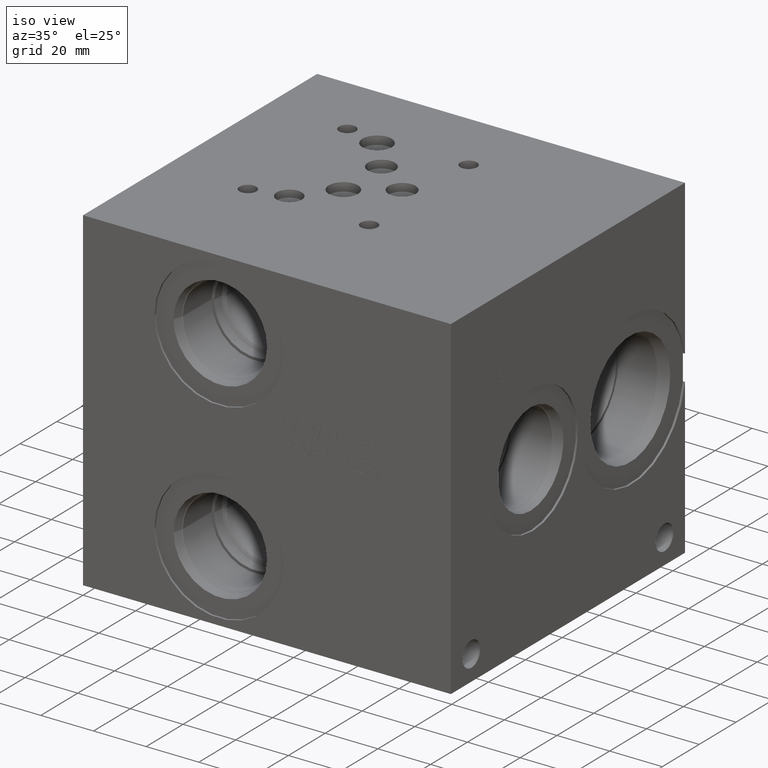
[diagram: clean part render]
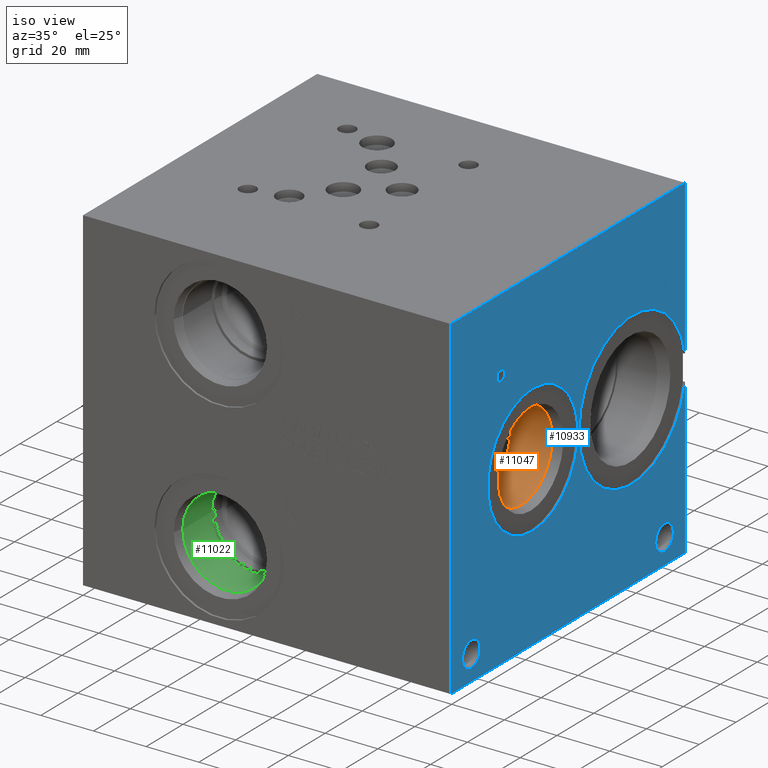
[diagram: same view with three faces highlighted in distinct colors, each labeled with its STEP entity id]
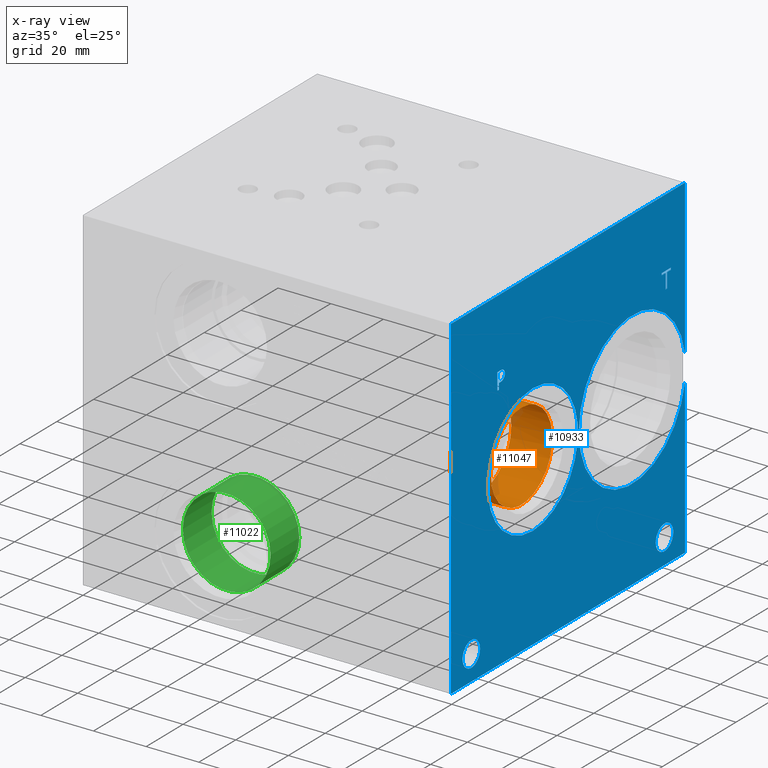
[diagram: x-ray of the same camera — body ghosted, the three highlighted faces saturated]
A machine part, iso view with three faces highlighted in distinct colors.
The next image is the same camera in x-ray (body ghosted, the three faces saturated) — at least one of them is partly hidden behind the body in this view.
Their STEP definitions:

[orange] entity #11047 — the highlighted cylindrical surface (bore or boss wall) has radius 16.67 mm, axis along (1, 0, 0).
#102=CYLINDRICAL_SURFACE('',#11655,16.67);
#286=CIRCLE('',#11652,16.67);
#287=CIRCLE('',#11653,16.67);
#289=CIRCLE('',#11656,16.67);
#290=CIRCLE('',#11657,16.67);
#1387=FACE_OUTER_BOUND('',#2020,.T.);
#2020=EDGE_LOOP('',(#9564,#9565,#9566,#9567,#9568,#9569));
#3064=LINE('',#18954,#4088);
#4088=VECTOR('',#13849,16.67);
#5116=VERTEX_POINT('',#18944);
#5117=VERTEX_POINT('',#18945);
#5119=VERTEX_POINT('',#18951);
#5120=VERTEX_POINT('',#18952);
#6624=EDGE_CURVE('',#5116,#5117,#286,.T.);
#6625=EDGE_CURVE('',#5117,#5116,#287,.T.);
#6627=EDGE_CURVE('',#5119,#5120,#289,.T.);
#6628=EDGE_CURVE('',#5119,#5117,#3064,.T.);
#6629=EDGE_CURVE('',#5120,#5119,#290,.T.);
#9564=ORIENTED_EDGE('',*,*,#6627,.F.);
#9565=ORIENTED_EDGE('',*,*,#6628,.T.);
#9566=ORIENTED_EDGE('',*,*,#6624,.F.);
#9567=ORIENTED_EDGE('',*,*,#6625,.F.);
#9568=ORIENTED_EDGE('',*,*,#6628,.F.);
#9569=ORIENTED_EDGE('',*,*,#6629,.F.);
#11047=ADVANCED_FACE('',(#1387),#102,.F.);
#11652=AXIS2_PLACEMENT_3D('',#18946,#13839,#13840);
#11653=AXIS2_PLACEMENT_3D('',#18947,#13841,#13842);
#11655=AXIS2_PLACEMENT_3D('',#18950,#13845,#13846);
#11656=AXIS2_PLACEMENT_3D('',#18953,#13847,#13848);
#11657=AXIS2_PLACEMENT_3D('',#18955,#13850,#13851);
#13839=DIRECTION('center_axis',(1.,0.,0.));
#13840=DIRECTION('ref_axis',(0.,1.,0.));
#13841=DIRECTION('center_axis',(1.,0.,0.));
#13842=DIRECTION('ref_axis',(0.,1.,0.));
#13845=DIRECTION('center_axis',(1.,0.,0.));
#13846=DIRECTION('ref_axis',(0.,1.,0.));
#13847=DIRECTION('center_axis',(-1.,0.,0.));
#13848=DIRECTION('ref_axis',(0.,1.,0.));
#13849=DIRECTION('',(-1.,0.,0.));
#13850=DIRECTION('center_axis',(-1.,0.,0.));
#13851=DIRECTION('ref_axis',(0.,1.,0.));
#18944=CARTESIAN_POINT('',(119.8626,61.12,63.5));
#18945=CARTESIAN_POINT('',(119.8626,27.78,63.5));
#18946=CARTESIAN_POINT('Origin',(119.8626,44.45,63.5));
#18947=CARTESIAN_POINT('Origin',(119.8626,44.45,63.5));
#18950=CARTESIAN_POINT('Origin',(129.7813,44.45,63.5));
#18951=CARTESIAN_POINT('',(135.4277,27.78,63.5));
#18952=CARTESIAN_POINT('',(135.4277,44.45,80.17));
#18953=CARTESIAN_POINT('Origin',(135.4277,44.45,63.5));
#18954=CARTESIAN_POINT('',(129.7813,27.78,63.5));
#18955=CARTESIAN_POINT('Origin',(135.4277,44.45,63.5));

[blue] entity #10933 — the highlighted planar face has unit normal (1, 0, 0).
#127=CIRCLE('',#11380,28.9814);
#128=CIRCLE('',#11381,24.4856);
#129=CIRCLE('',#11382,24.4856);
#130=CIRCLE('',#11383,4.7625);
#131=CIRCLE('',#11384,4.7625);
#132=CIRCLE('',#11385,4.7625);
#133=CIRCLE('',#11386,4.7625);
#372=FACE_BOUND('',#1885,.T.);
#373=FACE_BOUND('',#1886,.T.);
#374=FACE_BOUND('',#1887,.T.);
#375=FACE_BOUND('',#1888,.T.);
#376=FACE_BOUND('',#1889,.T.);
#697=B_SPLINE_CURVE_WITH_KNOTS('',2,(#18248,#18249,#18250,#18251),
 .UNSPECIFIED.,.F.,.F.,(3,1,3),(0.,1.,2.),.UNSPECIFIED.);
#699=B_SPLINE_CURVE_WITH_KNOTS('',2,(#18269,#18270,#18271,#18272),
 .UNSPECIFIED.,.F.,.F.,(3,1,3),(0.,1.,2.),.UNSPECIFIED.);
#701=B_SPLINE_CURVE_WITH_KNOTS('',2,(#18318,#18319,#18320,#18321),
 .UNSPECIFIED.,.F.,.F.,(3,1,3),(0.,1.,2.),.UNSPECIFIED.);
#703=B_SPLINE_CURVE_WITH_KNOTS('',2,(#18336,#18337,#18338,#18339),
 .UNSPECIFIED.,.F.,.F.,(3,1,3),(0.,1.,2.),.UNSPECIFIED.);
#1273=FACE_OUTER_BOUND('',#1884,.T.);
#1884=EDGE_LOOP('',(#9000,#9001,#9002,#9003,#9004,#9005));
#1885=EDGE_LOOP('',(#9006,#9007));
#1886=EDGE_LOOP('',(#9008,#9009));
#1887=EDGE_LOOP('',(#9010,#9011));
#1888=EDGE_LOOP('',(#9012,#9013,#9014,#9015,#9016,#9017,#9018,#9019));
#1889=EDGE_LOOP('',(#9020,#9021,#9022,#9023,#9024,#9025,#9026,#9027,#9028));
#2409=LINE('',#16591,#3433);
#2926=LINE('',#18281,#3950);
#2929=LINE('',#18287,#3953);
#2932=LINE('',#18293,#3956);
#2935=LINE('',#18299,#3959);
#2938=LINE('',#18305,#3962);
#2942=LINE('',#18350,#3966);
#2943=LINE('',#18351,#3967);
#2944=LINE('',#18353,#3968);
#2945=LINE('',#18354,#3969);
#2946=LINE('',#18369,#3970);
#2947=LINE('',#18371,#3971);
#2948=LINE('',#18373,#3972);
#2949=LINE('',#18375,#3973);
#2950=LINE('',#18377,#3974);
#2951=LINE('',#18379,#3975);
#2952=LINE('',#18381,#3976);
#2953=LINE('',#18382,#3977);
#3433=VECTOR('',#12250,10.);
#3950=VECTOR('',#13145,10.);
#3953=VECTOR('',#13150,10.);
#3956=VECTOR('',#13155,10.);
#3959=VECTOR('',#13160,10.);
#3962=VECTOR('',#13165,10.);
#3966=VECTOR('',#13175,10.);
#3967=VECTOR('',#13176,10.);
#3968=VECTOR('',#13177,10.);
#3969=VECTOR('',#13178,10.);
#3970=VECTOR('',#13191,10.);
#3971=VECTOR('',#13192,10.);
#3972=VECTOR('',#13193,10.);
#3973=VECTOR('',#13194,10.);
#3974=VECTOR('',#13195,10.);
#3975=VECTOR('',#13196,10.);
#3976=VECTOR('',#13197,10.);
#3977=VECTOR('',#13198,10.);
#4491=VERTEX_POINT('',#16588);
#4492=VERTEX_POINT('',#16590);
#4894=VERTEX_POINT('',#18246);
#4895=VERTEX_POINT('',#18247);
#4898=VERTEX_POINT('',#18268);
#4900=VERTEX_POINT('',#18280);
#4902=VERTEX_POINT('',#18286);
#4904=VERTEX_POINT('',#18292);
#4906=VERTEX_POINT('',#18298);
#4908=VERTEX_POINT('',#18304);
#4910=VERTEX_POINT('',#18317);
#4912=VERTEX_POINT('',#18346);
#4913=VERTEX_POINT('',#18347);
#4914=VERTEX_POINT('',#18349);
#4915=VERTEX_POINT('',#18352);
#4916=VERTEX_POINT('',#18355);
#4917=VERTEX_POINT('',#18356);
#4918=VERTEX_POINT('',#18359);
#4919=VERTEX_POINT('',#18360);
#4920=VERTEX_POINT('',#18363);
#4921=VERTEX_POINT('',#18364);
#4922=VERTEX_POINT('',#18367);
#4923=VERTEX_POINT('',#18368);
#4924=VERTEX_POINT('',#18370);
#4925=VERTEX_POINT('',#18372);
#4926=VERTEX_POINT('',#18374);
#4927=VERTEX_POINT('',#18376);
#4928=VERTEX_POINT('',#18378);
#4929=VERTEX_POINT('',#18380);
#5723=EDGE_CURVE('',#4491,#4492,#2409,.T.);
#6316=EDGE_CURVE('',#4894,#4895,#697,.T.);
#6320=EDGE_CURVE('',#4898,#4894,#699,.T.);
#6323=EDGE_CURVE('',#4900,#4898,#2926,.T.);
#6326=EDGE_CURVE('',#4902,#4900,#2929,.T.);
#6329=EDGE_CURVE('',#4904,#4902,#2932,.T.);
#6332=EDGE_CURVE('',#4906,#4904,#2935,.T.);
#6335=EDGE_CURVE('',#4908,#4906,#2938,.T.);
#6338=EDGE_CURVE('',#4910,#4908,#701,.T.);
#6341=EDGE_CURVE('',#4895,#4910,#703,.T.);
#6343=EDGE_CURVE('',#4912,#4913,#127,.T.);
#6344=EDGE_CURVE('',#4913,#4914,#2942,.T.);
#6345=EDGE_CURVE('',#4492,#4914,#2943,.T.);
#6346=EDGE_CURVE('',#4491,#4915,#2944,.T.);
#6347=EDGE_CURVE('',#4915,#4912,#2945,.T.);
#6348=EDGE_CURVE('',#4916,#4917,#128,.T.);
#6349=EDGE_CURVE('',#4917,#4916,#129,.T.);
#6350=EDGE_CURVE('',#4918,#4919,#130,.T.);
#6351=EDGE_CURVE('',#4919,#4918,#131,.T.);
#6352=EDGE_CURVE('',#4920,#4921,#132,.T.);
#6353=EDGE_CURVE('',#4921,#4920,#133,.T.);
#6354=EDGE_CURVE('',#4922,#4923,#2946,.T.);
#6355=EDGE_CURVE('',#4923,#4924,#2947,.T.);
#6356=EDGE_CURVE('',#4924,#4925,#2948,.T.);
#6357=EDGE_CURVE('',#4925,#4926,#2949,.T.);
#6358=EDGE_CURVE('',#4926,#4927,#2950,.T.);
#6359=EDGE_CURVE('',#4927,#4928,#2951,.T.);
#6360=EDGE_CURVE('',#4928,#4929,#2952,.T.);
#6361=EDGE_CURVE('',#4929,#4922,#2953,.T.);
#9000=ORIENTED_EDGE('',*,*,#6343,.T.);
#9001=ORIENTED_EDGE('',*,*,#6344,.T.);
#9002=ORIENTED_EDGE('',*,*,#6345,.F.);
#9003=ORIENTED_EDGE('',*,*,#5723,.F.);
#9004=ORIENTED_EDGE('',*,*,#6346,.T.);
#9005=ORIENTED_EDGE('',*,*,#6347,.T.);
#9006=ORIENTED_EDGE('',*,*,#6348,.T.);
#9007=ORIENTED_EDGE('',*,*,#6349,.T.);
#9008=ORIENTED_EDGE('',*,*,#6350,.T.);
#9009=ORIENTED_EDGE('',*,*,#6351,.T.);
#9010=ORIENTED_EDGE('',*,*,#6352,.T.);
#9011=ORIENTED_EDGE('',*,*,#6353,.T.);
#9012=ORIENTED_EDGE('',*,*,#6354,.T.);
#9013=ORIENTED_EDGE('',*,*,#6355,.T.);
#9014=ORIENTED_EDGE('',*,*,#6356,.T.);
#9015=ORIENTED_EDGE('',*,*,#6357,.T.);
#9016=ORIENTED_EDGE('',*,*,#6358,.T.);
#9017=ORIENTED_EDGE('',*,*,#6359,.T.);
#9018=ORIENTED_EDGE('',*,*,#6360,.T.);
#9019=ORIENTED_EDGE('',*,*,#6361,.T.);
#9020=ORIENTED_EDGE('',*,*,#6316,.T.);
#9021=ORIENTED_EDGE('',*,*,#6341,.T.);
#9022=ORIENTED_EDGE('',*,*,#6338,.T.);
#9023=ORIENTED_EDGE('',*,*,#6335,.T.);
#9024=ORIENTED_EDGE('',*,*,#6332,.T.);
#9025=ORIENTED_EDGE('',*,*,#6329,.T.);
#9026=ORIENTED_EDGE('',*,*,#6326,.T.);
#9027=ORIENTED_EDGE('',*,*,#6323,.T.);
#9028=ORIENTED_EDGE('',*,*,#6320,.T.);
#10038=PLANE('',#11379);
#10933=ADVANCED_FACE('',(#1273,#372,#373,#374,#375,#376),#10038,.T.);
#11379=AXIS2_PLACEMENT_3D('',#18345,#13171,#13172);
#11380=AXIS2_PLACEMENT_3D('',#18348,#13173,#13174);
#11381=AXIS2_PLACEMENT_3D('',#18357,#13179,#13180);
#11382=AXIS2_PLACEMENT_3D('',#18358,#13181,#13182);
#11383=AXIS2_PLACEMENT_3D('',#18361,#13183,#13184);
#11384=AXIS2_PLACEMENT_3D('',#18362,#13185,#13186);
#11385=AXIS2_PLACEMENT_3D('',#18365,#13187,#13188);
#11386=AXIS2_PLACEMENT_3D('',#18366,#13189,#13190);
#12250=DIRECTION('',(0.,0.,1.));
#13145=DIRECTION('',(0.,1.,0.));
#13150=DIRECTION('',(0.,0.,1.));
#13155=DIRECTION('',(0.,-1.,0.));
#13160=DIRECTION('',(0.,0.,-1.));
#13165=DIRECTION('',(0.,-1.,0.));
#13171=DIRECTION('center_axis',(1.,0.,0.));
#13172=DIRECTION('ref_axis',(0.,1.,0.));
#13173=DIRECTION('center_axis',(-1.,0.,0.));
#13174=DIRECTION('ref_axis',(0.,1.,0.));
#13175=DIRECTION('',(0.,0.,1.));
#13176=DIRECTION('',(0.,1.,0.));
#13177=DIRECTION('',(0.,1.,0.));
#13178=DIRECTION('',(0.,0.,1.));
#13179=DIRECTION('center_axis',(-1.,0.,0.));
#13180=DIRECTION('ref_axis',(0.,0.,-1.));
#13181=DIRECTION('center_axis',(-1.,0.,0.));
#13182=DIRECTION('ref_axis',(0.,0.,-1.));
#13183=DIRECTION('center_axis',(-1.,0.,0.));
#13184=DIRECTION('ref_axis',(0.,1.,0.));
#13185=DIRECTION('center_axis',(-1.,0.,0.));
#13186=DIRECTION('ref_axis',(0.,1.,0.));
#13187=DIRECTION('center_axis',(-1.,0.,0.));
#13188=DIRECTION('ref_axis',(0.,1.,0.));
#13189=DIRECTION('center_axis',(-1.,0.,0.));
#13190=DIRECTION('ref_axis',(0.,1.,0.));
#13191=DIRECTION('',(0.,-1.,0.));
#13192=DIRECTION('',(0.,0.,1.));
#13193=DIRECTION('',(0.,-1.,0.));
#13194=DIRECTION('',(0.,0.,1.));
#13195=DIRECTION('',(0.,1.,0.));
#13196=DIRECTION('',(0.,0.,-1.));
#13197=DIRECTION('',(0.,-1.,0.));
#13198=DIRECTION('',(0.,0.,-1.));
#16588=CARTESIAN_POINT('',(139.7,0.,0.));
#16590=CARTESIAN_POINT('',(139.7,0.,127.));
#16591=CARTESIAN_POINT('',(139.7,0.,0.));
#18246=CARTESIAN_POINT('',(139.7,28.5068172023594,100.410018143971));
#18247=CARTESIAN_POINT('',(139.7,29.263259654532,98.8919873726039));
#18248=CARTESIAN_POINT('Ctrl Pts',(139.7,28.5068172023594,100.410018143971));
#18249=CARTESIAN_POINT('Ctrl Pts',(139.7,28.8618820268486,100.168162393956));
#18250=CARTESIAN_POINT('Ctrl Pts',(139.7,29.263259654532,99.4220116758269));
#18251=CARTESIAN_POINT('Ctrl Pts',(139.7,29.263259654532,98.8919873726039));
#18268=CARTESIAN_POINT('',(139.7,26.8447021543883,100.806249904633));
#18269=CARTESIAN_POINT('Ctrl Pts',(139.7,26.8447021543883,100.806249904633));
#18270=CARTESIAN_POINT('Ctrl Pts',(139.7,27.4107475267624,100.806249904633));
#18271=CARTESIAN_POINT('Ctrl Pts',(139.7,28.203211048086,100.620998691856));
#18272=CARTESIAN_POINT('Ctrl Pts',(139.7,28.5068172023594,100.410018143971));
#18280=CARTESIAN_POINT('',(139.7,25.2494833776978,100.806249904633));
#18281=CARTESIAN_POINT('',(139.7,12.6247416888489,100.806249904633));
#18286=CARTESIAN_POINT('',(139.7,25.2494833776978,94.45625));
#18287=CARTESIAN_POINT('',(139.7,25.2494833776978,47.228125));
#18292=CARTESIAN_POINT('',(139.7,26.0934055692373,94.45625));
#18293=CARTESIAN_POINT('',(139.7,13.0467027846186,94.45625));
#18298=CARTESIAN_POINT('',(139.7,26.0934055692373,96.8233488299279));
#18299=CARTESIAN_POINT('',(139.7,26.0934055692373,48.4116744149639));
#18304=CARTESIAN_POINT('',(139.7,26.8086810852372,96.8233488299279));
#18305=CARTESIAN_POINT('',(139.7,13.4043405426186,96.8233488299279));
#18317=CARTESIAN_POINT('',(139.7,28.7075060162011,97.4820198086904));
#18318=CARTESIAN_POINT('Ctrl Pts',(139.7,28.7075060162011,97.4820198086904));
#18319=CARTESIAN_POINT('Ctrl Pts',(139.7,28.3781705268198,97.1578301863307));
#18320=CARTESIAN_POINT('Ctrl Pts',(139.7,27.4879355320861,96.8233488299279));
#18321=CARTESIAN_POINT('Ctrl Pts',(139.7,26.8086810852372,96.8233488299279));
#18336=CARTESIAN_POINT('Ctrl Pts',(139.7,29.263259654532,98.8919873726039));
#18337=CARTESIAN_POINT('Ctrl Pts',(139.7,29.263259654532,98.4803180108774));
#18338=CARTESIAN_POINT('Ctrl Pts',(139.7,28.9699452343018,97.7393131597695));
#18339=CARTESIAN_POINT('Ctrl Pts',(139.7,28.7075060162011,97.4820198086904));
#18345=CARTESIAN_POINT('Origin',(139.7,0.,0.));
#18346=CARTESIAN_POINT('',(139.7,127.,58.6635838723286));
#18347=CARTESIAN_POINT('',(139.7,127.,68.3364161276714));
#18348=CARTESIAN_POINT('Origin',(139.7,98.425,63.5));
#18349=CARTESIAN_POINT('',(139.7,127.,127.));
#18350=CARTESIAN_POINT('',(139.7,127.,0.));
#18351=CARTESIAN_POINT('',(139.7,0.,127.));
#18352=CARTESIAN_POINT('',(139.7,127.,0.));
#18353=CARTESIAN_POINT('',(139.7,0.,0.));
#18354=CARTESIAN_POINT('',(139.7,127.,0.));
#18355=CARTESIAN_POINT('',(139.7,44.45,39.0144));
#18356=CARTESIAN_POINT('',(139.7,44.45,87.9856));
#18357=CARTESIAN_POINT('Origin',(139.7,44.45,63.5));
#18358=CARTESIAN_POINT('Origin',(139.7,44.45,63.5));
#18359=CARTESIAN_POINT('',(139.7,120.6627,9.525));
#18360=CARTESIAN_POINT('',(139.7,111.1377,9.525));
#18361=CARTESIAN_POINT('Origin',(139.7,115.9002,9.525));
#18362=CARTESIAN_POINT('Origin',(139.7,115.9002,9.525));
#18363=CARTESIAN_POINT('',(139.7,15.8877,9.525));
#18364=CARTESIAN_POINT('',(139.7,6.3627,9.525));
#18365=CARTESIAN_POINT('Origin',(139.7,11.1252,9.525));
#18366=CARTESIAN_POINT('Origin',(139.7,11.1252,9.525));
#18367=CARTESIAN_POINT('',(139.7,117.269165271453,94.45625));
#18368=CARTESIAN_POINT('',(139.7,116.425243079913,94.45625));
#18369=CARTESIAN_POINT('',(139.7,58.6345826357265,94.45625));
#18370=CARTESIAN_POINT('',(139.7,116.425243079913,100.054953319482));
#18371=CARTESIAN_POINT('',(139.7,116.425243079913,47.228125));
#18372=CARTESIAN_POINT('',(139.7,114.294854132978,100.054953319482));
#18373=CARTESIAN_POINT('',(139.7,58.2126215399567,100.054953319482));
#18374=CARTESIAN_POINT('',(139.7,114.294854132978,100.806249904633));
#18375=CARTESIAN_POINT('',(139.7,114.294854132978,50.0274766597408));
#18376=CARTESIAN_POINT('',(139.7,119.399554218388,100.806249904633));
#18377=CARTESIAN_POINT('',(139.7,57.1474270664892,100.806249904633));
#18378=CARTESIAN_POINT('',(139.7,119.399554218388,100.054953319482));
#18379=CARTESIAN_POINT('',(139.7,119.399554218388,50.4031249523163));
#18380=CARTESIAN_POINT('',(139.7,117.269165271453,100.054953319482));
#18381=CARTESIAN_POINT('',(139.7,59.699777109194,100.054953319482));
#18382=CARTESIAN_POINT('',(139.7,117.269165271453,50.0274766597408));

[green] entity #11022 — the highlighted cylindrical surface (bore or boss wall) has radius 16.67 mm, axis along (0, -1, 0).
#91=CYLINDRICAL_SURFACE('',#11595,16.67);
#236=CIRCLE('',#11567,16.67);
#251=CIRCLE('',#11592,16.67);
#252=CIRCLE('',#11593,16.67);
#1362=FACE_OUTER_BOUND('',#1991,.T.);
#1991=EDGE_LOOP('',(#9446,#9447,#9448,#9449,#9450));
#3043=LINE('',#18833,#4067);
#4067=VECTOR('',#13706,16.67);
#5062=VERTEX_POINT('',#18775);
#5079=VERTEX_POINT('',#18826);
#5080=VERTEX_POINT('',#18827);
#6545=EDGE_CURVE('',#5062,#5062,#236,.T.);
#6568=EDGE_CURVE('',#5079,#5080,#251,.T.);
#6569=EDGE_CURVE('',#5080,#5079,#252,.T.);
#6571=EDGE_CURVE('',#5062,#5080,#3043,.T.);
#9446=ORIENTED_EDGE('',*,*,#6545,.T.);
#9447=ORIENTED_EDGE('',*,*,#6571,.T.);
#9448=ORIENTED_EDGE('',*,*,#6568,.F.);
#9449=ORIENTED_EDGE('',*,*,#6569,.F.);
#9450=ORIENTED_EDGE('',*,*,#6571,.F.);
#11022=ADVANCED_FACE('',(#1362),#91,.F.);
#11567=AXIS2_PLACEMENT_3D('',#18777,#13640,#13641);
#11592=AXIS2_PLACEMENT_3D('',#18828,#13698,#13699);
#11593=AXIS2_PLACEMENT_3D('',#18829,#13700,#13701);
#11595=AXIS2_PLACEMENT_3D('',#18832,#13704,#13705);
#13640=DIRECTION('center_axis',(0.,-1.,0.));
#13641=DIRECTION('ref_axis',(1.,0.,0.));
#13698=DIRECTION('center_axis',(0.,-1.,0.));
#13699=DIRECTION('ref_axis',(1.,0.,0.));
#13700=DIRECTION('center_axis',(0.,-1.,0.));
#13701=DIRECTION('ref_axis',(1.,0.,0.));
#13704=DIRECTION('center_axis',(0.,-1.,0.));
#13705=DIRECTION('ref_axis',(1.,0.,0.));
#13706=DIRECTION('',(0.,1.,0.));
#18775=CARTESIAN_POINT('',(34.9174,4.2723,26.9748));
#18777=CARTESIAN_POINT('Origin',(51.5874,4.2723,26.9748));
#18826=CARTESIAN_POINT('',(68.2574,19.8374,26.9748));
#18827=CARTESIAN_POINT('',(34.9174,19.8374,26.9748));
#18828=CARTESIAN_POINT('Origin',(51.5874,19.8374,26.9748));
#18829=CARTESIAN_POINT('Origin',(51.5874,19.8374,26.9748));
#18832=CARTESIAN_POINT('Origin',(51.5874,9.9187,26.9748));
#18833=CARTESIAN_POINT('',(34.9174,9.9187,26.9748));